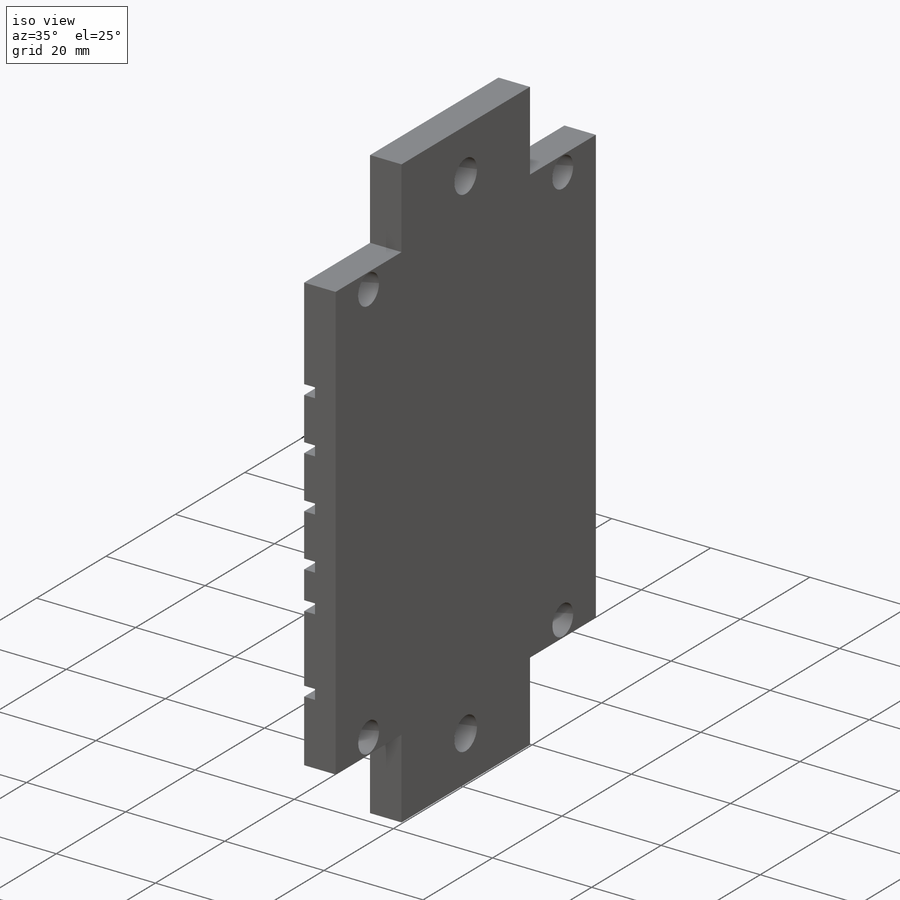
[diagram: iso view]
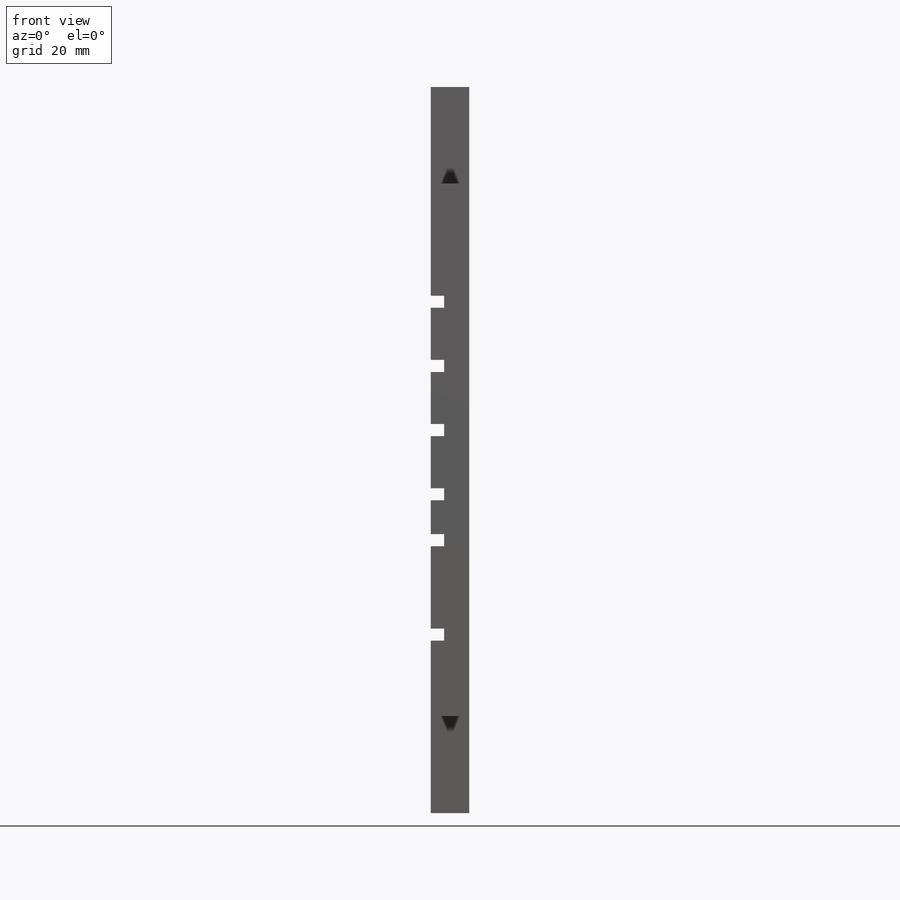
[diagram: front view]
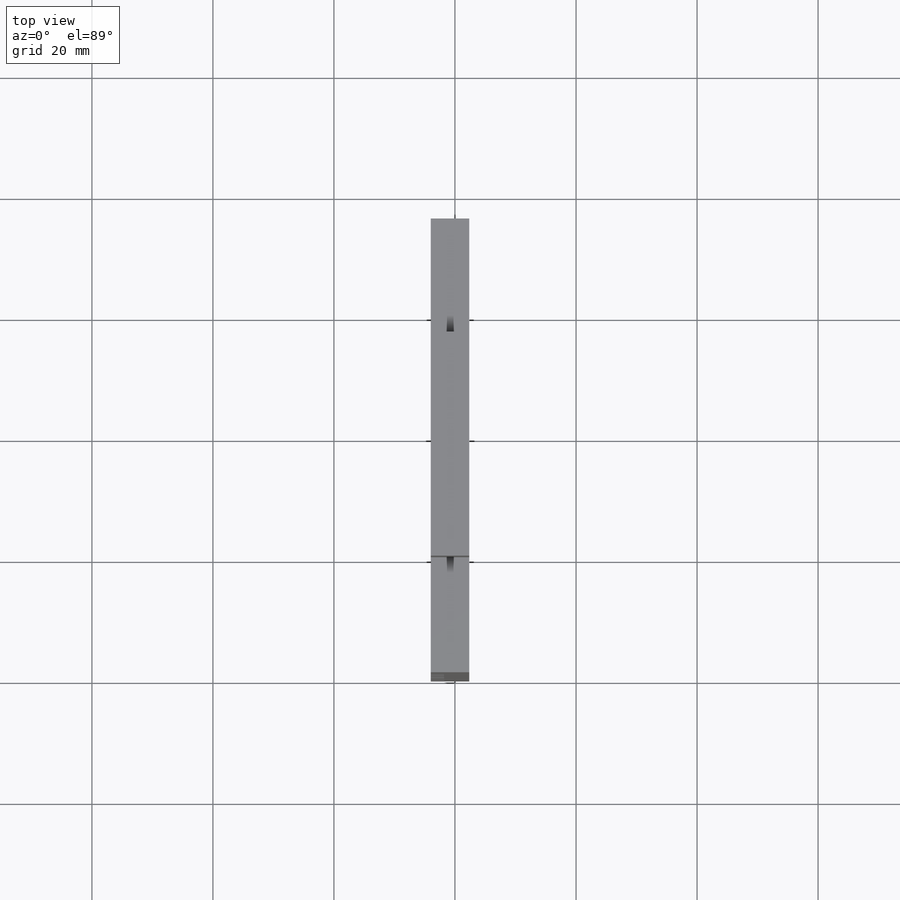
[diagram: top view]
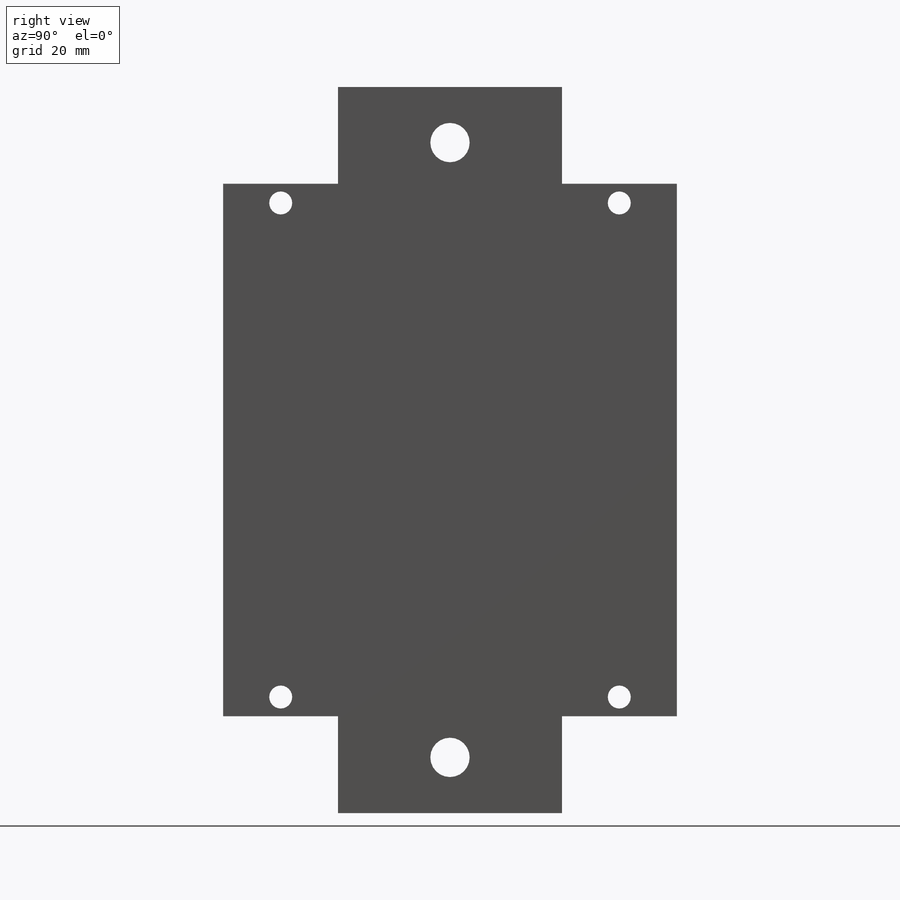
[diagram: right view]
SOLIDWORKS PART (.sldprt)
format: sldprt  version: not decoded by parser v0  size: 398,848 bytes
history: native  units: mm
features: sketch x6, extrude x6, cut_extrude x3, material x1, plane x1 (+11 scaffold rows collapsed)
feature tree (28):
  scaffold x11  (default folders/planes/origin — collapsed)
  material  "Material <not specified>"
  plane  "Plane1"  Offset=2mm
  sketch  "Sketch1"  dims[D1=88.0mm]
  extrude  "Boss-Extrude1"  Depth=6.35mm
  extrude  "Indent2"  Depth=10mm
  extrude  "Indent3"  Depth=10mm
  extrude  "Indent4"  Depth=10mm
  sketch  "Sketch2"  dims[D1=37.0mm]
  extrude  "Boss-Extrude2"  Depth=16mm
  sketch  "Sketch3"
  extrude  "Boss-Extrude3"  Depth=16mm
  sketch  "Sketch4"  dims[D1=~6.253297mm]
  cut_extrude  "Cut-Extrude1"  Depth=6.35mm
  sketch  "Sketch5"  dims[D1=9.525mm]
  cut_extrude  "Cut-Extrude2"  Depth=6.35mm
  sketch  "Sketch6"  dims[D1=~3.720469mm]
  cut_extrude  "Cut-Extrude3"  Depth=4mm
decode coverage: 14 of 15 modeling features carry decoded parameters
note: ~ marks probable driven/reference dimensions
note: suppression state not decoded; provenance and decode notes live in map.json
